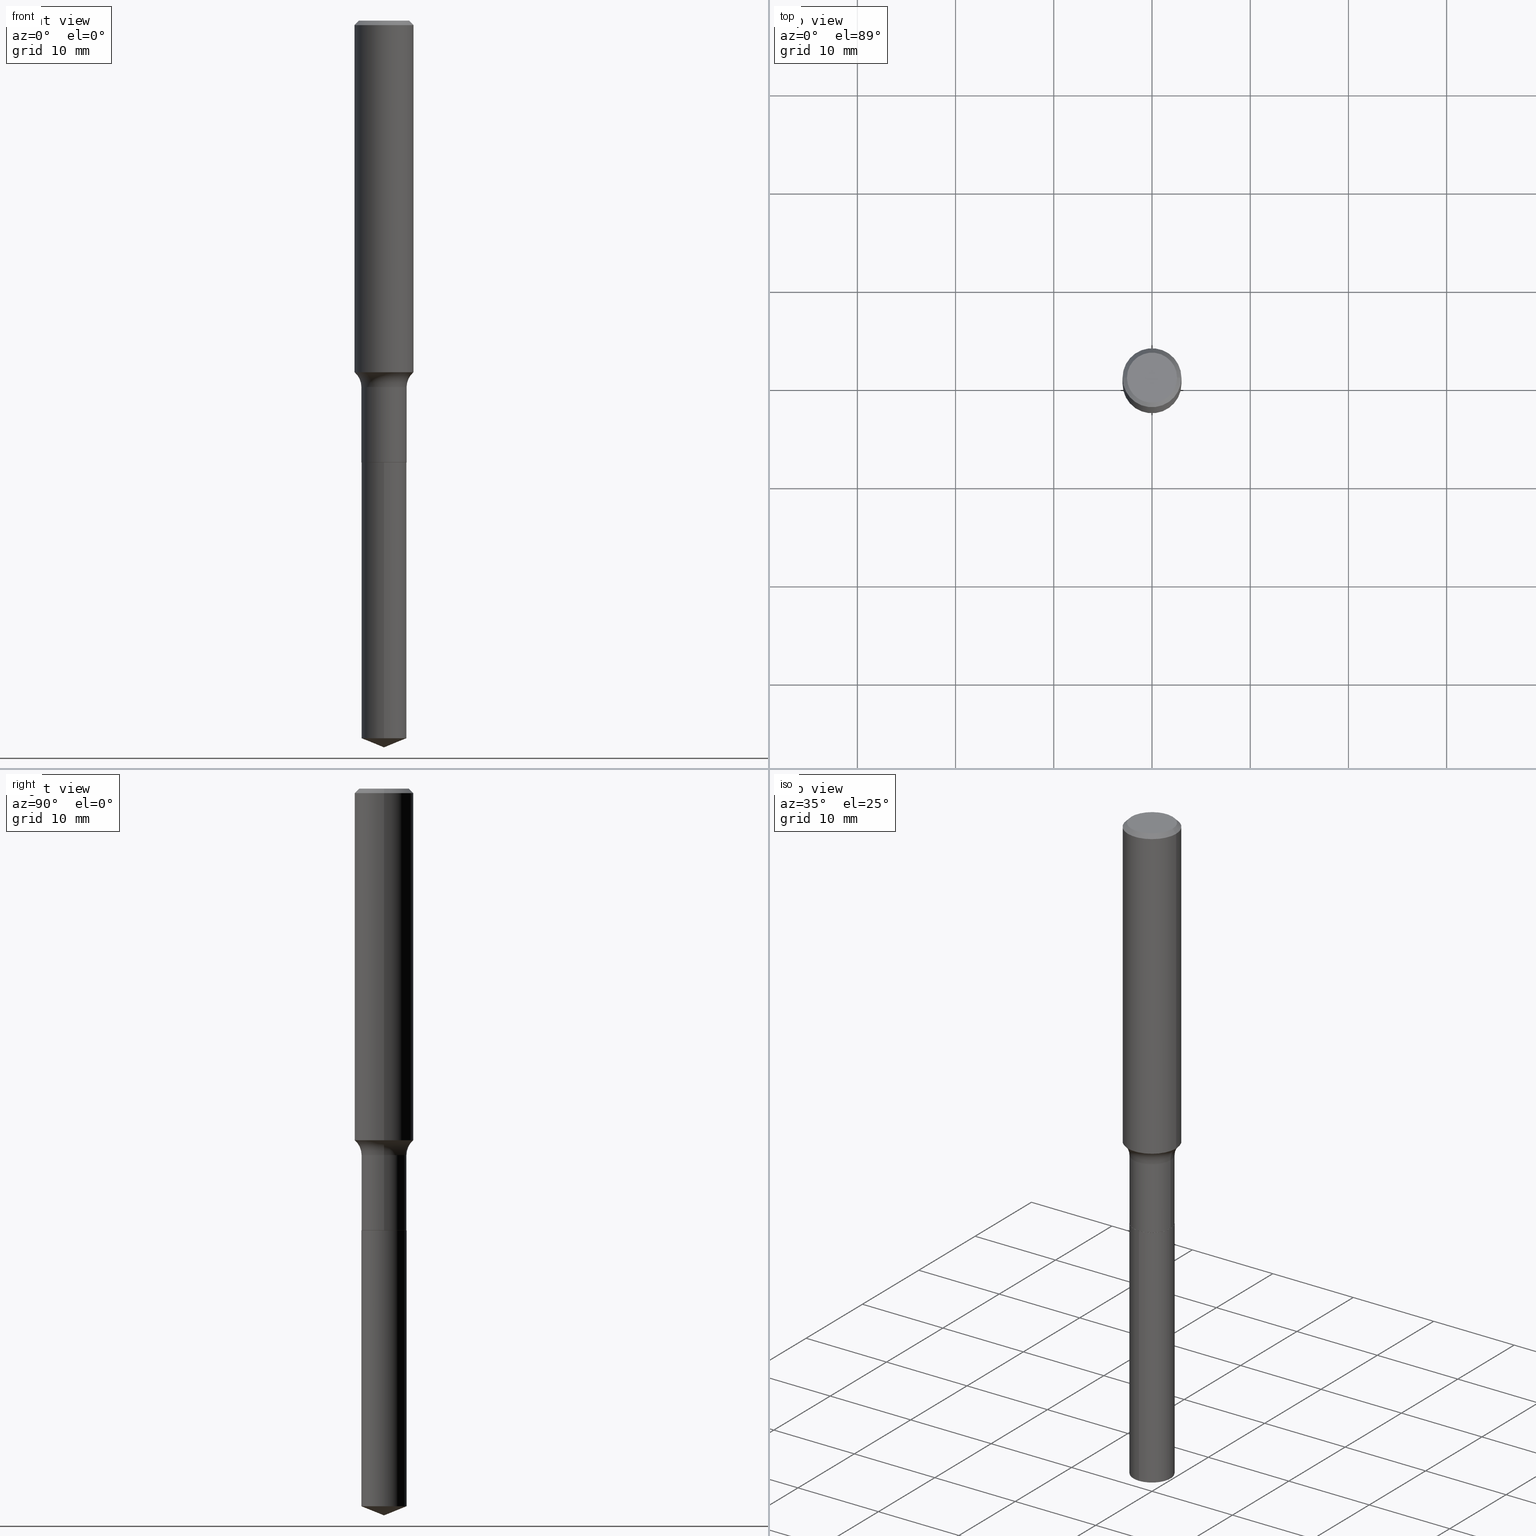
[diagram: canonical four-view strip — front | top / right | iso, engineering-drawing reading convention]
A machine part, canonical four-view strip (front | top / right | iso — engineering-drawing reading convention). The complete STEP part file that produces these views, byte-faithful:
ISO-10303-21;
HEADER;
FILE_DESCRIPTION (( 'STEP AP203' ),
    '1' );
FILE_NAME ('69239.STEP',
    '2024-04-19T17:28:53',
    ( '' ),
    ( '' ),
    'SwSTEP 2.0',
    'SolidWorks 2023',
    '' );
FILE_SCHEMA (( 'CONFIG_CONTROL_DESIGN' ));
ENDSEC;

DATA;
#1 = DIRECTION ( 'NONE',  ( 0.000000000000000000, 0.000000000000000000, 1.000000000000000000 ) ) ;
#2 = CARTESIAN_POINT ( 'NONE',  ( 7.123677460819512964E-29, -1.017064852674887936E-14, -2.912999999999999812 ) ) ;
#3 = ADVANCED_FACE ( 'NONE', ( #396 ), #324, .T. ) ;
#4 = CARTESIAN_POINT ( 'NONE',  ( -0.1003850000000000159, 7.319105043583384717E-16, -2.049109640503831060E-17 ) ) ;
#5 = PERSON_AND_ORGANIZATION_ROLE ( 'design_owner' ) ;
#6 = DIRECTION ( 'NONE',  ( -2.445428197971062335E-29, 3.491539492116975712E-15, 1.000000000000000000 ) ) ;
#7 = DIRECTION ( 'NONE',  ( -2.445428197971062335E-29, 3.491539492116975712E-15, 1.000000000000000000 ) ) ;
#8 = PLANE ( 'NONE',  #474 ) ;
#9 = CYLINDRICAL_SURFACE ( 'NONE', #460, 0.09054999999999999161 ) ;
#10 = DIRECTION ( 'NONE',  ( -2.445428197971062335E-29, 3.491539492116975712E-15, 1.000000000000000000 ) ) ;
#11 = APPROVAL_ROLE ( '' ) ;
#12 = DIRECTION ( 'NONE',  ( -2.445428197971062615E-29, 3.491539492116975712E-15, 1.000000000000000000 ) ) ;
#13 = CLOSED_SHELL ( 'NONE', ( #347, #78, #371, #60, #112 ) ) ;
#14 = CARTESIAN_POINT ( 'NONE',  ( 3.591904582524728769E-29, -5.128287790492811621E-15, -1.468799999999999883 ) ) ;
#15 = APPROVAL_DATE_TIME ( #99, #141 ) ;
#16 = EDGE_CURVE ( 'NONE', #187, #373, #175, .T. ) ;
#17 = ORIENTED_EDGE ( 'NONE', *, *, #94, .F. ) ;
#18 = CALENDAR_DATE ( 2024, 19, 4 ) ;
#19 = APPROVAL ( #137, 'UNSPECIFIED' ) ;
#20 = APPROVAL_PERSON_ORGANIZATION ( #116, #19, #11 ) ;
#21 = CARTESIAN_POINT ( 'NONE',  ( 6.433964472308411631E-16, 0.09054999999998999960, -2.876415425250627766 ) ) ;
#22 = DIRECTION ( 'NONE',  ( -2.445428197971062335E-29, 3.491539492116975712E-15, 1.000000000000000000 ) ) ;
#23 = ORIENTED_EDGE ( 'NONE', *, *, #488, .T. ) ;
#24 = MANIFOLD_SOLID_BREP ( 'Body-Move/Copy2[1]', #13 ) ;
#25 = DIRECTION ( 'NONE',  ( 1.000000000000000000, -6.982962677686266711E-15, 4.875668750515085695E-29 ) ) ;
#26 = ORIENTED_EDGE ( 'NONE', *, *, #234, .T. ) ;
#27 = VERTEX_POINT ( 'NONE', #293 ) ;
#28 = LINE ( 'NONE', #181, #404 ) ;
#29 = EDGE_LOOP ( 'NONE', ( #59, #432 ) ) ;
#30 = AXIS2_PLACEMENT_3D ( 'NONE', #226, #456, #259 ) ;
#31 = ORGANIZATION ( 'UNSPECIFIED', 'UNSPECIFIED', '' ) ;
#32 = DIRECTION ( 'NONE',  ( 1.000000000000000000, -6.982962677686263555E-15, 0.000000000000000000 ) ) ;
#33 = ORIENTED_EDGE ( 'NONE', *, *, #319, .T. ) ;
#34 = EDGE_CURVE ( 'NONE', #480, #27, #214, .T. ) ;
#35 = DIRECTION ( 'NONE',  ( -2.445468806185136597E-29, 3.491481338843145583E-15, 1.000000000000000000 ) ) ;
#36 = ORIENTED_EDGE ( 'NONE', *, *, #129, .T. ) ;
#37 = LINE ( 'NONE', #266, #168 ) ;
#38 = EDGE_CURVE ( 'NONE', #373, #302, #200, .T. ) ;
#39 = CONICAL_SURFACE ( 'NONE', #127, 97.44436430773076552, 1.186823891356153293 ) ;
#40 = DIRECTION ( 'NONE',  ( -2.445428197971062335E-29, 3.491539492116975712E-15, 1.000000000000000000 ) ) ;
#41 = APPROVAL_ROLE ( '' ) ;
#42 = CARTESIAN_POINT ( 'NONE',  ( 0.1180999999999999966, -8.720764054544246253E-16, -0.01771500000000011607 ) ) ;
#43 = PERSON_AND_ORGANIZATION ( #80, #31 ) ;
#44 = DIRECTION ( 'NONE',  ( -2.445428197971062335E-29, 3.491539492116975712E-15, 1.000000000000000000 ) ) ;
#45 = CARTESIAN_POINT ( 'NONE',  ( 7.034139319316397846E-29, -1.004301504610307500E-14, -2.876415425250627322 ) ) ;
#46 = VECTOR ( 'NONE', #378, 39.37007874015748143 ) ;
#47 = DIRECTION ( 'NONE',  ( 1.000000000000000000, -6.982962677686265922E-15, 4.876176775795935793E-29 ) ) ;
#48 = FACE_OUTER_BOUND ( 'NONE', #147, .T. ) ;
#49 = CARTESIAN_POINT ( 'NONE',  ( 7.123532340689705005E-29, -1.017085454053675039E-14, -2.912999999999999812 ) ) ;
#50 = DATE_AND_TIME ( #18, #206 ) ;
#51 = CYLINDRICAL_SURFACE ( 'NONE', #83, 0.1181000000000000799 ) ;
#52 = FACE_OUTER_BOUND ( 'NONE', #410, .T. ) ;
#53 = COORDINATED_UNIVERSAL_TIME_OFFSET ( 5, 0, .BEHIND. ) ;
#54 = VECTOR ( 'NONE', #489, 39.37007874015748143 ) ;
#55 = CIRCLE ( 'NONE', #333, 0.09055000000000000548 ) ;
#56 = SECURITY_CLASSIFICATION_LEVEL ( 'unclassified' ) ;
#57 = DIRECTION ( 'NONE',  ( -6.982962677686266711E-15, -1.000000000000000000, 3.491481338843145583E-15 ) ) ;
#58 = PERSON_AND_ORGANIZATION ( #80, #31 ) ;
#59 = ORIENTED_EDGE ( 'NONE', *, *, #362, .F. ) ;
#60 = ADVANCED_FACE ( 'NONE', ( #470 ), #212, .T. ) ;
#61 = CARTESIAN_POINT ( 'NONE',  ( 0.1181000000000001909, -5.745275164048953464E-15, -1.409312207134572281 ) ) ;
#62 = DIRECTION ( 'NONE',  ( -2.445468806185136597E-29, 3.491481338843145583E-15, 1.000000000000000000 ) ) ;
#63 = EDGE_LOOP ( 'NONE', ( #289, #327, #96, #481 ) ) ;
#64 = VECTOR ( 'NONE', #268, 39.37007874015748143 ) ;
#65 = ORIENTED_EDGE ( 'NONE', *, *, #34, .T. ) ;
#66 = ORIENTED_EDGE ( 'NONE', *, *, #252, .F. ) ;
#67 = PRODUCT_DEFINITION_SHAPE ( 'NONE', 'NONE',  #172 ) ;
#68 = DIRECTION ( 'NONE',  ( 1.000000000000000000, -6.982962677686266711E-15, 0.000000000000000000 ) ) ;
#69 = VERTEX_POINT ( 'NONE', #392 ) ;
#70 = CARTESIAN_POINT ( 'NONE',  ( 0.000000000000000000, 0.000000000000000000, 0.000000000000000000 ) ) ;
#71 = VERTEX_POINT ( 'NONE', #49 ) ;
#72 = AXIS2_PLACEMENT_3D ( 'NONE', #491, #40, #315 ) ;
#73 = LOCAL_TIME ( 13, 28, 53.00000000000000000, #360 ) ;
#74 = DIRECTION ( 'NONE',  ( -1.000000000000000000, 7.105427357601001859E-15, 0.000000000000000000 ) ) ;
#75 = ORIENTED_EDGE ( 'NONE', *, *, #233, .T. ) ;
#76 = CYLINDRICAL_SURFACE ( 'NONE', #30, 0.09054999999999999161 ) ;
#77 = ADVANCED_FACE ( 'NONE', ( #316 ), #8, .F. ) ;
#78 = ADVANCED_FACE ( 'NONE', ( #350 ), #39, .T. ) ;
#79 = CARTESIAN_POINT ( 'NONE',  ( 4.330436161992639608E-29, -6.182715154823442375E-15, -1.770799999999999930 ) ) ;
#80 = PERSON ( 'UNSPECIFIED', 'UNSPECIFIED', 'UNSPECIFIED', ('UNSPECIFIED'), ('UNSPECIFIED'), ('UNSPECIFIED') ) ;
#81 = AXIS2_PLACEMENT_3D ( 'NONE', #177, #239, #139 ) ;
#82 = CARTESIAN_POINT ( 'NONE',  ( 4.331658896395732410E-29, -6.184460895492863090E-15, -1.771299999999999653 ) ) ;
#83 = AXIS2_PLACEMENT_3D ( 'NONE', #123, #434, #355 ) ;
#84 = DATE_AND_TIME ( #345, #169 ) ;
#85 = LINE ( 'NONE', #386, #111 ) ;
#86 = APPROVAL_DATE_TIME ( #84, #114 ) ;
#87 = DIRECTION ( 'NONE',  ( -6.982962677686266711E-15, -1.000000000000000000, 6.033899489043098888E-15 ) ) ;
#88 = ADVANCED_FACE ( 'NONE', ( #52 ), #151, .T. ) ;
#89 = APPLICATION_PROTOCOL_DEFINITION ( 'international standard', 'config_control_design', 1994, #426 ) ;
#90 = DIRECTION ( 'NONE',  ( -2.445468806185136597E-29, 3.491481338843145583E-15, 1.000000000000000000 ) ) ;
#91 = APPROVAL_PERSON_ORGANIZATION ( #58, #141, #290 ) ;
#92 = ORIENTED_EDGE ( 'NONE', *, *, #340, .T. ) ;
#93 = VERTEX_POINT ( 'NONE', #356 ) ;
#94 = EDGE_CURVE ( 'NONE', #435, #69, #431, .T. ) ;
#95 = LENGTH_MEASURE_WITH_UNIT ( LENGTH_MEASURE( 0.02539999999999999897 ), #439 );
#96 = ORIENTED_EDGE ( 'NONE', *, *, #94, .T. ) ;
#97 = CLOSED_SHELL ( 'NONE', ( #429, #416, #288, #438, #307, #401, #198, #408, #88, #305, #77, #3 ) ) ;
#98 =( CONVERSION_BASED_UNIT ( 'INCH', #95 ) LENGTH_UNIT ( ) NAMED_UNIT ( #322 ) );
#99 = DATE_AND_TIME ( #132, #73 ) ;
#100 =( NAMED_UNIT ( * ) SI_UNIT ( $, .STERADIAN. ) SOLID_ANGLE_UNIT ( ) );
#101 = EDGE_LOOP ( 'NONE', ( #263, #353, #476, #251 ) ) ;
#102 = CARTESIAN_POINT ( 'NONE',  ( 4.331658896395732410E-29, -6.184460895492863090E-15, -1.771299999999999653 ) ) ;
#103 = ORIENTED_EDGE ( 'NONE', *, *, #430, .T. ) ;
#104 = CONICAL_SURFACE ( 'NONE', #247, 0.1180999999999999966, 0.7853981633974452814 ) ;
#105 = CARTESIAN_POINT ( 'NONE',  ( 0.1180999999999999966, -8.865394841523548556E-16, -0.01771500000000011607 ) ) ;
#106 = ORIENTED_EDGE ( 'NONE', *, *, #451, .T. ) ;
#107 = DIRECTION ( 'NONE',  ( -2.445468806185136597E-29, 3.491481338843145583E-15, 1.000000000000000000 ) ) ;
#108 = ORIENTED_EDGE ( 'NONE', *, *, #314, .T. ) ;
#109 = DIRECTION ( 'NONE',  ( -0.7071067811865453523, 2.468850131082234184E-15, -0.7071067811865496822 ) ) ;
#110 = ORIENTED_EDGE ( 'NONE', *, *, #328, .T. ) ;
#111 = VECTOR ( 'NONE', #237, 39.37007874015748143 ) ;
#112 = ADVANCED_FACE ( 'NONE', ( #320 ), #369, .F. ) ;
#113 = CARTESIAN_POINT ( 'NONE',  ( 2.505516853152066359E-46, -3.577214035530481610E-32, -1.024554820251665005E-17 ) ) ;
#114 = APPROVAL ( #463, 'UNSPECIFIED' ) ;
#115 = CARTESIAN_POINT ( 'NONE',  ( -0.09005000000000000504, -5.541967934766781931E-15, -1.771299999999999653 ) ) ;
#116 = PERSON_AND_ORGANIZATION ( #80, #31 ) ;
#117 = CARTESIAN_POINT ( 'NONE',  ( 4.332147990156998495E-31, -6.185159191760672860E-17, -0.01771500000000011607 ) ) ;
#118 = CIRCLE ( 'NONE', #363, 0.1180999999999999966 ) ;
#119 = CARTESIAN_POINT ( 'NONE',  ( 6.433964472308412617E-16, 0.09054999999999382987, -1.771300000000000097 ) ) ;
#120 = AXIS2_PLACEMENT_3D ( 'NONE', #385, #90, #351 ) ;
#121 = EDGE_CURVE ( 'NONE', #27, #480, #383, .T. ) ;
#122 = DIRECTION ( 'NONE',  ( -6.982962677686266711E-15, -1.000000000000000000, 3.016949744521549444E-15 ) ) ;
#123 = CARTESIAN_POINT ( 'NONE',  ( 0.000000000000000000, 0.000000000000000000, 0.000000000000000000 ) ) ;
#124 = CARTESIAN_POINT ( 'NONE',  ( 4.332147990156998495E-31, -6.185159191760672860E-17, -0.01771500000000011607 ) ) ;
#125 = UNCERTAINTY_MEASURE_WITH_UNIT (LENGTH_MEASURE( 1.000000000000000082E-05 ), #98, 'distance_accuracy_value', 'NONE');
#126 = CARTESIAN_POINT ( 'NONE',  ( -6.323072704644481808E-16, -0.09055000000000619498, -1.771299999999999430 ) ) ;
#127 = AXIS2_PLACEMENT_3D ( 'NONE', #162, #22, #466 ) ;
#128 = VECTOR ( 'NONE', #133, 39.37007874015748143 ) ;
#129 = EDGE_CURVE ( 'NONE', #442, #332, #37, .T. ) ;
#130 = DIRECTION ( 'NONE',  ( 0.7071067811866199593, -2.468850131083015945E-15, 0.7071067811864750752 ) ) ;
#131 = DIRECTION ( 'NONE',  ( 2.445428197971062055E-29, -3.491539492116975712E-15, -1.000000000000000000 ) ) ;
#132 = CALENDAR_DATE ( 2024, 19, 4 ) ;
#133 = DIRECTION ( 'NONE',  ( -2.445468806185136877E-29, 3.491481338843145188E-15, 1.000000000000000000 ) ) ;
#134 = CARTESIAN_POINT ( 'NONE',  ( 5.011033706304132718E-46, -7.154428071060963220E-32, -2.049109640503330010E-17 ) ) ;
#135 = VECTOR ( 'NONE', #12, 39.37007874015748143 ) ;
#136 = VERTEX_POINT ( 'NONE', #105 ) ;
#137 = APPROVAL_STATUS ( 'not_yet_approved' ) ;
#138 = DIRECTION ( 'NONE',  ( -2.445468806185136597E-29, 3.491481338843145583E-15, 1.000000000000000000 ) ) ;
#139 = DIRECTION ( 'NONE',  ( 1.000000000000000000, -6.982962677686271444E-15, 0.000000000000000000 ) ) ;
#140 = EDGE_LOOP ( 'NONE', ( #370, #108, #329, #174 ) ) ;
#141 = APPROVAL ( #357, 'UNSPECIFIED' ) ;
#142 = AXIS2_PLACEMENT_3D ( 'NONE', #124, #326, #202 ) ;
#143 = PRODUCT_DEFINITION_FORMATION_WITH_SPECIFIED_SOURCE ( 'ANY', '', #211, .NOT_KNOWN. ) ;
#144 = FACE_OUTER_BOUND ( 'NONE', #101, .T. ) ;
#145 = ORIENTED_EDGE ( 'NONE', *, *, #16, .T. ) ;
#146 = DIRECTION ( 'NONE',  ( 1.000000000000000000, -6.982962677686266711E-15, 4.876176775795936353E-29 ) ) ;
#147 = EDGE_LOOP ( 'NONE', ( #92, #255, #407, #325 ) ) ;
#148 = EDGE_CURVE ( 'NONE', #93, #403, #459, .T. ) ;
#149 = LINE ( 'NONE', #335, #46 ) ;
#150 = ORIENTED_EDGE ( 'NONE', *, *, #121, .T. ) ;
#151 = CONICAL_SURFACE ( 'NONE', #142, 0.1180999999999999966, 0.7853981633974452814 ) ;
#152 = CIRCLE ( 'NONE', #228, 0.09055000000000000548 ) ;
#153 = DIRECTION ( 'NONE',  ( 1.000000000000000000, -6.982962677686266711E-15, 0.000000000000000000 ) ) ;
#154 = PERSON_AND_ORGANIZATION ( #80, #31 ) ;
#155 = LINE ( 'NONE', #2, #54 ) ;
#156 = DIRECTION ( 'NONE',  ( -2.445468806185136597E-29, 3.491481338843145583E-15, 1.000000000000000000 ) ) ;
#157 = AXIS2_PLACEMENT_3D ( 'NONE', #381, #382, #343 ) ;
#158 = CARTESIAN_POINT ( 'NONE',  ( 0.000000000000000000, 0.000000000000000000, 0.000000000000000000 ) ) ;
#159 = AXIS2_PLACEMENT_3D ( 'NONE', #465, #461, #193 ) ;
#160 = PERSON_AND_ORGANIZATION_ROLE ( 'creator' ) ;
#161 = DIRECTION ( 'NONE',  ( -2.445468806185136877E-29, 3.491481338843145188E-15, 1.000000000000000000 ) ) ;
#162 = CARTESIAN_POINT ( 'NONE',  ( -8.915309643750284617E-28, 1.272914331953719616E-13, 36.45707874015747763 ) ) ;
#163 = DIRECTION ( 'NONE',  ( 1.000000000000000000, 0.000000000000000000, 0.000000000000000000 ) ) ;
#164 = EDGE_CURVE ( 'NONE', #136, #332, #118, .T. ) ;
#165 = DIRECTION ( 'NONE',  ( 0.7071067811865453523, -7.319954787623248157E-15, -0.7071067811865496822 ) ) ;
#166 = DIRECTION ( 'NONE',  ( 1.000000000000000000, -6.982962677686271444E-15, 0.000000000000000000 ) ) ;
#167 = DIRECTION ( 'NONE',  ( -2.445468806185136597E-29, 3.491481338843145583E-15, 1.000000000000000000 ) ) ;
#168 = VECTOR ( 'NONE', #109, 39.37007874015748143 ) ;
#169 = LOCAL_TIME ( 13, 28, 53.00000000000000000, #240 ) ;
#170 = DIRECTION ( 'NONE',  ( 1.000000000000000000, -6.982962677686268288E-15, 0.000000000000000000 ) ) ;
#171 = DATE_AND_TIME ( #243, #390 ) ;
#172 = PRODUCT_DEFINITION ( 'UNKNOWN', '', #143, #283 ) ;
#173 = PERSON_AND_ORGANIZATION_ROLE ( 'creator' ) ;
#174 = ORIENTED_EDGE ( 'NONE', *, *, #38, .F. ) ;
#175 = CIRCLE ( 'NONE', #415, 0.09005000000000000504 ) ;
#176 = AXIS2_PLACEMENT_3D ( 'NONE', #82, #7, #122 ) ;
#177 = CARTESIAN_POINT ( 'NONE',  ( 4.331658896395732410E-29, -6.184460895492863090E-15, -1.771299999999999653 ) ) ;
#178 = ORIENTED_EDGE ( 'NONE', *, *, #164, .F. ) ;
#179 = EDGE_CURVE ( 'NONE', #302, #294, #152, .T. ) ;
#180 = CARTESIAN_POINT ( 'NONE',  ( 4.331658896395732410E-29, -6.184460895492863090E-15, -1.771299999999999653 ) ) ;
#181 = CARTESIAN_POINT ( 'NONE',  ( 7.123532340689703884E-29, -1.017085454053675039E-14, -2.912999999999999812 ) ) ;
#182 = EDGE_LOOP ( 'NONE', ( #487, #197, #106, #361 ) ) ;
#183 = VECTOR ( 'NONE', #161, 39.37007874015748143 ) ;
#184 = CARTESIAN_POINT ( 'NONE',  ( 4.331658896395732410E-29, -6.184460895492863090E-15, -1.771299999999999653 ) ) ;
#185 = ORIENTED_EDGE ( 'NONE', *, *, #380, .F. ) ;
#186 = DIRECTION ( 'NONE',  ( -2.445428197971062335E-29, 3.491539492116975712E-15, 1.000000000000000000 ) ) ;
#187 = VERTEX_POINT ( 'NONE', #115 ) ;
#188 = DIRECTION ( 'NONE',  ( -2.445468806185136597E-29, 3.491481338843145583E-15, 1.000000000000000000 ) ) ;
#189 = AXIS2_PLACEMENT_3D ( 'NONE', #113, #417, #484 ) ;
#190 = APPROVAL_PERSON_ORGANIZATION ( #424, #114, #41 ) ;
#191 = CARTESIAN_POINT ( 'NONE',  ( -0.09055000000000000548, -5.012105025427356931E-15, -1.770799999999999930 ) ) ;
#192 = DIRECTION ( 'NONE',  ( 1.000000000000000000, -6.982962677686265133E-15, 4.883557194083112340E-29 ) ) ;
#193 = DIRECTION ( 'NONE',  ( 1.000000000000000000, -6.982962677686271444E-15, 0.000000000000000000 ) ) ;
#194 = CIRCLE ( 'NONE', #264, 0.07800000000000002764 ) ;
#195 = CARTESIAN_POINT ( 'NONE',  ( 0.1003850000000000159, -7.803837484803599345E-16, -2.049109640502812012E-17 ) ) ;
#196 = AXIS2_PLACEMENT_3D ( 'NONE', #45, #44, #349 ) ;
#197 = ORIENTED_EDGE ( 'NONE', *, *, #34, .F. ) ;
#198 = ADVANCED_FACE ( 'NONE', ( #218 ), #277, .F. ) ;
#199 = LINE ( 'NONE', #428, #64 ) ;
#200 = LINE ( 'NONE', #479, #454 ) ;
#201 = CARTESIAN_POINT ( 'NONE',  ( 7.034139319316397846E-29, -1.004301504610307500E-14, -2.876415425250627322 ) ) ;
#202 = DIRECTION ( 'NONE',  ( -1.000000000000000000, 6.982962677686266711E-15, 0.000000000000000000 ) ) ;
#203 = PERSON_AND_ORGANIZATION_ROLE ( 'design_supplier' ) ;
#204 = DIRECTION ( 'NONE',  ( -2.445468806185136597E-29, 3.491481338843145583E-15, 1.000000000000000000 ) ) ;
#205 = CIRCLE ( 'NONE', #222, 0.09055000000000000548 ) ;
#206 = LOCAL_TIME ( 13, 28, 53.00000000000000000, #53 ) ;
#207 = PERSON_AND_ORGANIZATION_ROLE ( 'classification_officer' ) ;
#208 = EDGE_CURVE ( 'NONE', #27, #435, #194, .T. ) ;
#209 = SHAPE_DEFINITION_REPRESENTATION ( #67, #462 ) ;
#210 = ORIENTED_EDGE ( 'NONE', *, *, #430, .F. ) ;
#211 = PRODUCT ( '69239', '69239', '', ( #384 ) ) ;
#212 = CYLINDRICAL_SURFACE ( 'NONE', #303, 0.09055000000000000548 ) ;
#213 = ORIENTED_EDGE ( 'NONE', *, *, #334, .T. ) ;
#214 = CIRCLE ( 'NONE', #468, 0.1181000000000001632 ) ;
#215 = AXIS2_PLACEMENT_3D ( 'NONE', #249, #57, #250 ) ;
#216 = ORIENTED_EDGE ( 'NONE', *, *, #464, .F. ) ;
#217 = ORIENTED_EDGE ( 'NONE', *, *, #323, .F. ) ;
#218 = FACE_OUTER_BOUND ( 'NONE', #182, .T. ) ;
#219 = ORIENTED_EDGE ( 'NONE', *, *, #252, .T. ) ;
#220 = LINE ( 'NONE', #374, #310 ) ;
#221 = ORIENTED_EDGE ( 'NONE', *, *, #380, .T. ) ;
#222 = AXIS2_PLACEMENT_3D ( 'NONE', #79, #188, #341 ) ;
#223 = DIRECTION ( 'NONE',  ( -2.445468806185136597E-29, 3.491481338843145583E-15, 1.000000000000000000 ) ) ;
#224 = ORIENTED_EDGE ( 'NONE', *, *, #319, .F. ) ;
#225 = CC_DESIGN_PERSON_AND_ORGANIZATION_ASSIGNMENT ( #399, #203, ( #143 ) ) ;
#226 = CARTESIAN_POINT ( 'NONE',  ( 0.000000000000000000, 0.000000000000000000, 0.000000000000000000 ) ) ;
#227 = CARTESIAN_POINT ( 'NONE',  ( 0.09055000000000000548, -6.815022425287933844E-15, -1.770799999999999930 ) ) ;
#228 = AXIS2_PLACEMENT_3D ( 'NONE', #413, #223, #153 ) ;
#229 = CC_DESIGN_PERSON_AND_ORGANIZATION_ASSIGNMENT ( #321, #207, ( #304 ) ) ;
#230 = FACE_OUTER_BOUND ( 'NONE', #140, .T. ) ;
#231 = FACE_OUTER_BOUND ( 'NONE', #298, .T. ) ;
#232 = LINE ( 'NONE', #457, #183 ) ;
#233 = EDGE_CURVE ( 'NONE', #71, #490, #155, .T. ) ;
#234 = EDGE_CURVE ( 'NONE', #302, #69, #149, .T. ) ;
#235 = ORIENTED_EDGE ( 'NONE', *, *, #233, .F. ) ;
#236 = DATE_AND_TIME ( #313, #492 ) ;
#237 = DIRECTION ( 'NONE',  ( -2.445428197971062615E-29, 3.491539492116975712E-15, 1.000000000000000000 ) ) ;
#238 = AXIS2_PLACEMENT_3D ( 'NONE', #134, #284, #25 ) ;
#239 = DIRECTION ( 'NONE',  ( -2.445468806185136597E-29, 3.491481338843145583E-15, 1.000000000000000000 ) ) ;
#240 = COORDINATED_UNIVERSAL_TIME_OFFSET ( 5, 0, .BEHIND. ) ;
#241 = CARTESIAN_POINT ( 'NONE',  ( -6.323072704644212610E-16, -0.09055000000001005300, -2.876415425250626878 ) ) ;
#242 = DIRECTION ( 'NONE',  ( -2.445468806185136597E-29, 3.491481338843145583E-15, 1.000000000000000000 ) ) ;
#243 = CALENDAR_DATE ( 2024, 19, 4 ) ;
#244 = ORIENTED_EDGE ( 'NONE', *, *, #419, .T. ) ;
#245 = CC_DESIGN_PERSON_AND_ORGANIZATION_ASSIGNMENT ( #43, #160, ( #172 ) ) ;
#246 = AXIS2_PLACEMENT_3D ( 'NONE', #70, #486, #146 ) ;
#247 = AXIS2_PLACEMENT_3D ( 'NONE', #117, #344, #273 ) ;
#248 = APPLICATION_CONTEXT ( 'configuration controlled 3d designs of mechanical parts and assemblies' ) ;
#249 = CARTESIAN_POINT ( 'NONE',  ( 0.1685499999999999776, -6.305266149816831137E-15, -1.468799999999999883 ) ) ;
#250 = DIRECTION ( 'NONE',  ( 1.000000000000000000, -6.982962677686268288E-15, 0.000000000000000000 ) ) ;
#251 = ORIENTED_EDGE ( 'NONE', *, *, #234, .F. ) ;
#252 = EDGE_CURVE ( 'NONE', #336, #442, #295, .T. ) ;
#253 = APPLICATION_PROTOCOL_DEFINITION ( 'international standard', 'config_control_design', 1994, #248 ) ;
#254 = EDGE_LOOP ( 'NONE', ( #65, #367, #178, #412 ) ) ;
#255 = ORIENTED_EDGE ( 'NONE', *, *, #339, .T. ) ;
#256 = AXIS2_PLACEMENT_3D ( 'NONE', #372, #107, #297 ) ;
#257 = DIRECTION ( 'NONE',  ( -6.982962677686266711E-15, -1.000000000000000000, 3.016949744521549444E-15 ) ) ;
#258 = ORIENTED_EDGE ( 'NONE', *, *, #340, .F. ) ;
#259 = DIRECTION ( 'NONE',  ( 1.000000000000000000, -6.982962677686266711E-15, 4.876176775795935793E-29 ) ) ;
#260 = ORIENTED_EDGE ( 'NONE', *, *, #339, .F. ) ;
#261 = CC_DESIGN_DATE_AND_TIME_ASSIGNMENT ( #236, #276, ( #172 ) ) ;
#262 = DIRECTION ( 'NONE',  ( -2.445468806185136597E-29, 3.491481338843145583E-15, 1.000000000000000000 ) ) ;
#263 = ORIENTED_EDGE ( 'NONE', *, *, #179, .T. ) ;
#264 = AXIS2_PLACEMENT_3D ( 'NONE', #447, #418, #74 ) ;
#265 = CIRCLE ( 'NONE', #159, 0.09005000000000000504 ) ;
#266 = CARTESIAN_POINT ( 'NONE',  ( -0.1180999999999999966, 7.628363003171412752E-16, -0.01771500000000011607 ) ) ;
#267 = DIRECTION ( 'NONE',  ( -0.7071067811866199593, 7.493145998870616062E-15, 0.7071067811864750752 ) ) ;
#268 = DIRECTION ( 'NONE',  ( -2.445468806185136877E-29, 3.491481338843145188E-15, 1.000000000000000000 ) ) ;
#269 = AXIS2_PLACEMENT_3D ( 'NONE', #180, #131, #281 ) ;
#270 = AXIS2_PLACEMENT_3D ( 'NONE', #394, #167, #192 ) ;
#271 = LINE ( 'NONE', #126, #135 ) ;
#272 = FACE_OUTER_BOUND ( 'NONE', #379, .T. ) ;
#273 = DIRECTION ( 'NONE',  ( -1.000000000000000000, 6.982962677686266711E-15, 0.000000000000000000 ) ) ;
#274 = EDGE_CURVE ( 'NONE', #71, #440, #28, .T. ) ;
#275 = ORIENTED_EDGE ( 'NONE', *, *, #274, .T. ) ;
#276 = DATE_TIME_ROLE ( 'creation_date' ) ;
#277 = TOROIDAL_SURFACE ( 'NONE', #256, 0.1685499999999999776, 0.07800000000000001377 ) ;
#278 = CC_DESIGN_APPROVAL ( #19, ( #143 ) ) ;
#279 = CARTESIAN_POINT ( 'NONE',  ( -8.915309643750284617E-28, 1.272914331953719616E-13, 36.45707874015747763 ) ) ;
#280 = DIRECTION ( 'NONE',  ( -6.982962677686266711E-15, -1.000000000000000000, 3.016949744521549444E-15 ) ) ;
#281 = DIRECTION ( 'NONE',  ( 6.982962677686265922E-15, 1.000000000000000000, -3.491539492116975712E-15 ) ) ;
#282 = APPROVAL_DATE_TIME ( #50, #19 ) ;
#283 = DESIGN_CONTEXT ( 'detailed design', #426, 'design' ) ;
#284 = DIRECTION ( 'NONE',  ( -2.445468806185136597E-29, 3.491481338843145583E-15, 1.000000000000000000 ) ) ;
#285 = CIRCLE ( 'NONE', #72, 0.09055000000000000548 ) ;
#286 = CC_DESIGN_APPROVAL ( #114, ( #172 ) ) ;
#287 =( NAMED_UNIT ( * ) PLANE_ANGLE_UNIT ( ) SI_UNIT ( $, .RADIAN. ) );
#288 = ADVANCED_FACE ( 'NONE', ( #449 ), #331, .T. ) ;
#289 = ORIENTED_EDGE ( 'NONE', *, *, #121, .F. ) ;
#290 = APPROVAL_ROLE ( '' ) ;
#291 = DIRECTION ( 'NONE',  ( 1.000000000000000000, -6.982962677686263555E-15, 0.000000000000000000 ) ) ;
#292 = ORIENTED_EDGE ( 'NONE', *, *, #328, .F. ) ;
#293 = CARTESIAN_POINT ( 'NONE',  ( -0.1181000000000001909, -4.081436300881524638E-15, -1.409312207134572281 ) ) ;
#294 = VERTEX_POINT ( 'NONE', #191 ) ;
#295 = CIRCLE ( 'NONE', #342, 0.1003850000000000159 ) ;
#296 = TOROIDAL_SURFACE ( 'NONE', #270, 0.1685499999999999776, 0.07800000000000001377 ) ;
#297 = DIRECTION ( 'NONE',  ( 1.000000000000000000, -6.982962677686265133E-15, 4.883557194083112340E-29 ) ) ;
#298 = EDGE_LOOP ( 'NONE', ( #235, #275, #185 ) ) ;
#299 = FACE_OUTER_BOUND ( 'NONE', #446, .T. ) ;
#300 = EDGE_LOOP ( 'NONE', ( #330, #150, #244, #224 ) ) ;
#301 = DIRECTION ( 'NONE',  ( 1.000000000000000000, -6.982962677686266711E-15, 4.875668750515085695E-29 ) ) ;
#302 = VERTEX_POINT ( 'NONE', #227 ) ;
#303 = AXIS2_PLACEMENT_3D ( 'NONE', #102, #10, #280 ) ;
#304 = SECURITY_CLASSIFICATION ( '', '', #56 ) ;
#305 = ADVANCED_FACE ( 'NONE', ( #299 ), #452, .F. ) ;
#306 = DIRECTION ( 'NONE',  ( -6.474490251793199928E-15, -0.9271838545667895337, 0.3746065934159067412 ) ) ;
#307 = ADVANCED_FACE ( 'NONE', ( #144 ), #76, .T. ) ;
#308 = COORDINATED_UNIVERSAL_TIME_OFFSET ( 5, 0, .BEHIND. ) ;
#309 = DIRECTION ( 'NONE',  ( -6.982962677686265922E-15, -1.000000000000000000, 3.498761904101743544E-15 ) ) ;
#310 = VECTOR ( 'NONE', #267, 39.37007874015748143 ) ;
#311 = CONICAL_SURFACE ( 'NONE', #120, 0.09005000000000000504, 0.7853981633975507526 ) ;
#312 = CARTESIAN_POINT ( 'NONE',  ( -0.1180999999999999966, -1.652068460933225925E-15, -0.01771500000000011607 ) ) ;
#313 = CALENDAR_DATE ( 2024, 19, 4 ) ;
#314 = EDGE_CURVE ( 'NONE', #187, #294, #220, .T. ) ;
#315 = DIRECTION ( 'NONE',  ( -6.982962677686266711E-15, -1.000000000000000000, 3.016949744521549444E-15 ) ) ;
#316 = FACE_OUTER_BOUND ( 'NONE', #29, .T. ) ;
#317 = CARTESIAN_POINT ( 'NONE',  ( -0.09054999999999997773, -5.012105025427356931E-15, -1.468799999999999883 ) ) ;
#318 = CARTESIAN_POINT ( 'NONE',  ( 3.446429040723522126E-29, -4.920587271814204412E-15, -1.409312207134572281 ) ) ;
#319 = EDGE_CURVE ( 'NONE', #332, #136, #376, .T. ) ;
#320 = FACE_OUTER_BOUND ( 'NONE', #445, .T. ) ;
#321 = PERSON_AND_ORGANIZATION ( #80, #31 ) ;
#322 = DIMENSIONAL_EXPONENTS ( 1.000000000000000000, 0.000000000000000000, 0.000000000000000000, 0.000000000000000000, 0.000000000000000000, 0.000000000000000000, 0.000000000000000000 ) ;
#323 = EDGE_CURVE ( 'NONE', #294, #302, #205, .T. ) ;
#324 = CONICAL_SURFACE ( 'NONE', #81, 0.09005000000000000504, 0.7853981633975507526 ) ;
#325 = ORIENTED_EDGE ( 'NONE', *, *, #334, .F. ) ;
#326 = DIRECTION ( 'NONE',  ( 2.445468806185136597E-29, -3.491481338843145583E-15, -1.000000000000000000 ) ) ;
#327 = ORIENTED_EDGE ( 'NONE', *, *, #208, .T. ) ;
#328 = EDGE_CURVE ( 'NONE', #403, #93, #285, .T. ) ;
#329 = ORIENTED_EDGE ( 'NONE', *, *, #179, .F. ) ;
#330 = ORIENTED_EDGE ( 'NONE', *, *, #387, .F. ) ;
#331 = CYLINDRICAL_SURFACE ( 'NONE', #246, 0.1181000000000000799 ) ;
#332 = VERTEX_POINT ( 'NONE', #312 ) ;
#333 = AXIS2_PLACEMENT_3D ( 'NONE', #201, #6, #87 ) ;
#334 = EDGE_CURVE ( 'NONE', #440, #93, #271, .T. ) ;
#335 = CARTESIAN_POINT ( 'NONE',  ( 0.09054999999999999161, -6.323072704644913710E-16, 4.415378070483219406E-30 ) ) ;
#336 = VERTEX_POINT ( 'NONE', #195 ) ;
#337 = DIRECTION ( 'NONE',  ( -2.445468806185136597E-29, 3.491481338843145583E-15, 1.000000000000000000 ) ) ;
#338 = ORIENTED_EDGE ( 'NONE', *, *, #323, .T. ) ;
#339 = EDGE_CURVE ( 'NONE', #490, #403, #85, .T. ) ;
#340 = EDGE_CURVE ( 'NONE', #440, #490, #444, .T. ) ;
#341 = DIRECTION ( 'NONE',  ( 1.000000000000000000, -6.982962677686266711E-15, 0.000000000000000000 ) ) ;
#342 = AXIS2_PLACEMENT_3D ( 'NONE', #409, #35, #301 ) ;
#343 = DIRECTION ( 'NONE',  ( 1.000000000000000000, -6.982962677686266711E-15, 0.000000000000000000 ) ) ;
#344 = DIRECTION ( 'NONE',  ( 2.445468806185136597E-29, -3.491481338843145583E-15, -1.000000000000000000 ) ) ;
#345 = CALENDAR_DATE ( 2024, 19, 4 ) ;
#346 = CARTESIAN_POINT ( 'NONE',  ( 0.09005000000000000504, -6.813276684618512341E-15, -1.771299999999999653 ) ) ;
#347 = ADVANCED_FACE ( 'NONE', ( #48 ), #425, .T. ) ;
#348 = AXIS2_PLACEMENT_3D ( 'NONE', #279, #421, #309 ) ;
#349 = DIRECTION ( 'NONE',  ( -6.982962677686266711E-15, -1.000000000000000000, 6.033899489043098888E-15 ) ) ;
#350 = FACE_OUTER_BOUND ( 'NONE', #469, .T. ) ;
#351 = DIRECTION ( 'NONE',  ( 1.000000000000000000, -6.982962677686271444E-15, 0.000000000000000000 ) ) ;
#352 = MANIFOLD_SOLID_BREP ( 'Body-Move/Copy2[2]', #97 ) ;
#353 = ORIENTED_EDGE ( 'NONE', *, *, #464, .T. ) ;
#354 = CC_DESIGN_DATE_AND_TIME_ASSIGNMENT ( #171, #437, ( #304 ) ) ;
#355 = DIRECTION ( 'NONE',  ( 1.000000000000000000, -6.982962677686266711E-15, 4.876176775795936353E-29 ) ) ;
#356 = CARTESIAN_POINT ( 'NONE',  ( -6.323072704644481808E-16, -0.09055000000000619498, -1.771299999999999430 ) ) ;
#357 = APPROVAL_STATUS ( 'not_yet_approved' ) ;
#358 = AXIS2_PLACEMENT_3D ( 'NONE', #14, #138, #170 ) ;
#359 =( GEOMETRIC_REPRESENTATION_CONTEXT ( 3 ) GLOBAL_UNCERTAINTY_ASSIGNED_CONTEXT ( ( #125 ) ) GLOBAL_UNIT_ASSIGNED_CONTEXT ( ( #98, #287, #100 ) ) REPRESENTATION_CONTEXT ( 'NONE', 'WORKASPACE' ) );
#360 = COORDINATED_UNIVERSAL_TIME_OFFSET ( 5, 0, .BEHIND. ) ;
#361 = ORIENTED_EDGE ( 'NONE', *, *, #472, .T. ) ;
#362 = EDGE_CURVE ( 'NONE', #373, #187, #265, .T. ) ;
#363 = AXIS2_PLACEMENT_3D ( 'NONE', #411, #337, #68 ) ;
#364 = AXIS2_PLACEMENT_3D ( 'NONE', #184, #186, #257 ) ;
#365 = CARTESIAN_POINT ( 'NONE',  ( 4.331658896395732410E-29, -6.184460895492863090E-15, -1.771299999999999653 ) ) ;
#366 = CC_DESIGN_SECURITY_CLASSIFICATION ( #304, ( #143 ) ) ;
#367 = ORIENTED_EDGE ( 'NONE', *, *, #387, .T. ) ;
#368 = LINE ( 'NONE', #402, #128 ) ;
#369 = PLANE ( 'NONE',  #269 ) ;
#370 = ORIENTED_EDGE ( 'NONE', *, *, #362, .T. ) ;
#371 = ADVANCED_FACE ( 'NONE', ( #231 ), #433, .T. ) ;
#372 = CARTESIAN_POINT ( 'NONE',  ( 3.591904582524728769E-29, -5.128287790492811621E-15, -1.468799999999999883 ) ) ;
#373 = VERTEX_POINT ( 'NONE', #346 ) ;
#374 = CARTESIAN_POINT ( 'NONE',  ( -0.09005000000000000504, -5.544617161940893132E-15, -1.771299999999999653 ) ) ;
#375 = ORIENTED_EDGE ( 'NONE', *, *, #274, .F. ) ;
#376 = CIRCLE ( 'NONE', #157, 0.1180999999999999966 ) ;
#377 = AXIS2_PLACEMENT_3D ( 'NONE', #420, #1, #163 ) ;
#378 = DIRECTION ( 'NONE',  ( -2.445468806185136877E-29, 3.491481338843145188E-15, 1.000000000000000000 ) ) ;
#379 = EDGE_LOOP ( 'NONE', ( #216, #338, #26, #17 ) ) ;
#380 = EDGE_CURVE ( 'NONE', #490, #440, #55, .T. ) ;
#381 = CARTESIAN_POINT ( 'NONE',  ( 4.332147990156998495E-31, -6.185159191760672860E-17, -0.01771500000000011607 ) ) ;
#382 = DIRECTION ( 'NONE',  ( -2.445468806185136597E-29, 3.491481338843145583E-15, 1.000000000000000000 ) ) ;
#383 = CIRCLE ( 'NONE', #422, 0.1181000000000001632 ) ;
#384 = MECHANICAL_CONTEXT ( 'NONE', #248, 'mechanical' ) ;
#385 = CARTESIAN_POINT ( 'NONE',  ( 4.331658896395732410E-29, -6.184460895492863090E-15, -1.771299999999999653 ) ) ;
#386 = CARTESIAN_POINT ( 'NONE',  ( 6.433964472308139474E-16, 0.09054999999999382987, -1.771300000000000097 ) ) ;
#387 = EDGE_CURVE ( 'NONE', #27, #332, #232, .T. ) ;
#388 = FACE_OUTER_BOUND ( 'NONE', #406, .T. ) ;
#389 = ORIENTED_EDGE ( 'NONE', *, *, #164, .T. ) ;
#390 = LOCAL_TIME ( 13, 28, 53.00000000000000000, #477 ) ;
#391 = DIRECTION ( 'NONE',  ( 1.000000000000000000, -6.982962677686266711E-15, 4.876176775795935793E-29 ) ) ;
#392 = CARTESIAN_POINT ( 'NONE',  ( 0.09054999999999997773, -5.760595060957303090E-15, -1.468799999999999883 ) ) ;
#393 = PRODUCT_RELATED_PRODUCT_CATEGORY ( 'detail', '', ( #211 ) ) ;
#394 = CARTESIAN_POINT ( 'NONE',  ( 3.591904582524728769E-29, -5.128287790492811621E-15, -1.468799999999999883 ) ) ;
#395 = DIRECTION ( 'NONE',  ( -2.438088387897960049E-29, 3.491481338843145188E-15, 1.000000000000000000 ) ) ;
#396 = FACE_OUTER_BOUND ( 'NONE', #400, .T. ) ;
#397 = PERSON_AND_ORGANIZATION ( #80, #31 ) ;
#398 = CIRCLE ( 'NONE', #238, 0.1003850000000000159 ) ;
#399 = PERSON_AND_ORGANIZATION ( #80, #31 ) ;
#400 = EDGE_LOOP ( 'NONE', ( #485, #145, #453, #217 ) ) ;
#401 = ADVANCED_FACE ( 'NONE', ( #272 ), #9, .T. ) ;
#402 = CARTESIAN_POINT ( 'NONE',  ( -0.09054999999999999161, 6.433964472307706587E-16, -4.454095724225816518E-30 ) ) ;
#403 = VERTEX_POINT ( 'NONE', #119 ) ;
#404 = VECTOR ( 'NONE', #306, 39.37007874015748143 ) ;
#405 = AXIS2_PLACEMENT_3D ( 'NONE', #473, #204, #471 ) ;
#406 = EDGE_LOOP ( 'NONE', ( #66, #103, #389, #482 ) ) ;
#407 = ORIENTED_EDGE ( 'NONE', *, *, #148, .F. ) ;
#408 = ADVANCED_FACE ( 'NONE', ( #427 ), #51, .T. ) ;
#409 = CARTESIAN_POINT ( 'NONE',  ( 5.011033706304132718E-46, -7.154428071060963220E-32, -2.049109640503330010E-17 ) ) ;
#410 = EDGE_LOOP ( 'NONE', ( #210, #448, #36, #33 ) ) ;
#411 = CARTESIAN_POINT ( 'NONE',  ( 4.332147990156998495E-31, -6.185159191760672860E-17, -0.01771500000000011607 ) ) ;
#412 = ORIENTED_EDGE ( 'NONE', *, *, #419, .F. ) ;
#413 = CARTESIAN_POINT ( 'NONE',  ( 4.330436161992639608E-29, -6.182715154823442375E-15, -1.770799999999999930 ) ) ;
#414 = ORIENTED_EDGE ( 'NONE', *, *, #148, .T. ) ;
#415 = AXIS2_PLACEMENT_3D ( 'NONE', #441, #242, #166 ) ;
#416 = ADVANCED_FACE ( 'NONE', ( #388 ), #104, .T. ) ;
#417 = DIRECTION ( 'NONE',  ( 2.438088387897960049E-29, -3.491481338843145188E-15, -1.000000000000000000 ) ) ;
#418 = DIRECTION ( 'NONE',  ( 7.105427357601001859E-15, 1.000000000000000000, -3.491481338843145583E-15 ) ) ;
#419 = EDGE_CURVE ( 'NONE', #480, #136, #199, .T. ) ;
#420 = CARTESIAN_POINT ( 'NONE',  ( 0.000000000000000000, 0.000000000000000000, 0.000000000000000000 ) ) ;
#421 = DIRECTION ( 'NONE',  ( -2.445428197971062335E-29, 3.491539492116975712E-15, 1.000000000000000000 ) ) ;
#422 = AXIS2_PLACEMENT_3D ( 'NONE', #436, #262, #32 ) ;
#423 = VECTOR ( 'NONE', #165, 39.37007874015748143 ) ;
#424 = PERSON_AND_ORGANIZATION ( #80, #31 ) ;
#425 = CYLINDRICAL_SURFACE ( 'NONE', #176, 0.09055000000000000548 ) ;
#426 = APPLICATION_CONTEXT ( 'configuration controlled 3d designs of mechanical parts and assemblies' ) ;
#427 = FACE_OUTER_BOUND ( 'NONE', #300, .T. ) ;
#428 = CARTESIAN_POINT ( 'NONE',  ( 0.1181000000000000799, -8.246878922347486570E-16, 5.758764772215004644E-30 ) ) ;
#429 = ADVANCED_FACE ( 'NONE', ( #230 ), #311, .T. ) ;
#430 = EDGE_CURVE ( 'NONE', #336, #136, #458, .T. ) ;
#431 = CIRCLE ( 'NONE', #358, 0.09054999999999997773 ) ;
#432 = ORIENTED_EDGE ( 'NONE', *, *, #16, .F. ) ;
#433 = CONICAL_SURFACE ( 'NONE', #348, 97.44436430773076552, 1.186823891356153293 ) ;
#434 = DIRECTION ( 'NONE',  ( -2.445468806185136597E-29, 3.491481338843145583E-15, 1.000000000000000000 ) ) ;
#435 = VERTEX_POINT ( 'NONE', #317 ) ;
#436 = CARTESIAN_POINT ( 'NONE',  ( 3.446429040723522126E-29, -4.920587271814204412E-15, -1.409312207134572281 ) ) ;
#437 = DATE_TIME_ROLE ( 'classification_date' ) ;
#438 = ADVANCED_FACE ( 'NONE', ( #467 ), #296, .F. ) ;
#439 =( LENGTH_UNIT ( ) NAMED_UNIT ( * ) SI_UNIT ( $, .METRE. ) );
#440 = VERTEX_POINT ( 'NONE', #241 ) ;
#441 = CARTESIAN_POINT ( 'NONE',  ( 4.331658896395732410E-29, -6.184460895492863090E-15, -1.771299999999999653 ) ) ;
#442 = VERTEX_POINT ( 'NONE', #4 ) ;
#443 = CC_DESIGN_PERSON_AND_ORGANIZATION_ASSIGNMENT ( #154, #5, ( #211 ) ) ;
#444 = CIRCLE ( 'NONE', #196, 0.09055000000000000548 ) ;
#445 = EDGE_LOOP ( 'NONE', ( #414, #110 ) ) ;
#446 = EDGE_LOOP ( 'NONE', ( #23, #219 ) ) ;
#447 = CARTESIAN_POINT ( 'NONE',  ( -0.1685499999999999776, -3.930668009369162917E-15, -1.468799999999999883 ) ) ;
#448 = ORIENTED_EDGE ( 'NONE', *, *, #488, .F. ) ;
#449 = FACE_OUTER_BOUND ( 'NONE', #254, .T. ) ;
#450 = EDGE_LOOP ( 'NONE', ( #260, #221, #213, #292 ) ) ;
#451 = EDGE_CURVE ( 'NONE', #480, #69, #475, .T. ) ;
#452 = PLANE ( 'NONE',  #189 ) ;
#453 = ORIENTED_EDGE ( 'NONE', *, *, #38, .T. ) ;
#454 = VECTOR ( 'NONE', #130, 39.37007874015748143 ) ;
#455 = CIRCLE ( 'NONE', #405, 0.09054999999999997773 ) ;
#456 = DIRECTION ( 'NONE',  ( -2.445468806185136597E-29, 3.491481338843145583E-15, 1.000000000000000000 ) ) ;
#457 = CARTESIAN_POINT ( 'NONE',  ( -0.1181000000000000799, 8.391509709326788873E-16, -5.809262341591047988E-30 ) ) ;
#458 = LINE ( 'NONE', #42, #423 ) ;
#459 = CIRCLE ( 'NONE', #364, 0.09055000000000000548 ) ;
#460 = AXIS2_PLACEMENT_3D ( 'NONE', #158, #156, #391 ) ;
#461 = DIRECTION ( 'NONE',  ( -2.445468806185136597E-29, 3.491481338843145583E-15, 1.000000000000000000 ) ) ;
#462 = ADVANCED_BREP_SHAPE_REPRESENTATION ( '69239', ( #24, #352, #377 ), #359 ) ;
#463 = APPROVAL_STATUS ( 'not_yet_approved' ) ;
#464 = EDGE_CURVE ( 'NONE', #294, #435, #368, .T. ) ;
#465 = CARTESIAN_POINT ( 'NONE',  ( 4.331658896395732410E-29, -6.184460895492863090E-15, -1.771299999999999653 ) ) ;
#466 = DIRECTION ( 'NONE',  ( -6.982962677686265922E-15, -1.000000000000000000, 3.498761904101743544E-15 ) ) ;
#467 = FACE_OUTER_BOUND ( 'NONE', #63, .T. ) ;
#468 = AXIS2_PLACEMENT_3D ( 'NONE', #318, #62, #291 ) ;
#469 = EDGE_LOOP ( 'NONE', ( #375, #75, #258 ) ) ;
#470 = FACE_OUTER_BOUND ( 'NONE', #450, .T. ) ;
#471 = DIRECTION ( 'NONE',  ( 1.000000000000000000, -6.982962677686268288E-15, 0.000000000000000000 ) ) ;
#472 = EDGE_CURVE ( 'NONE', #69, #435, #455, .T. ) ;
#473 = CARTESIAN_POINT ( 'NONE',  ( 3.591904582524728769E-29, -5.128287790492811621E-15, -1.468799999999999883 ) ) ;
#474 = AXIS2_PLACEMENT_3D ( 'NONE', #365, #395, #47 ) ;
#475 = CIRCLE ( 'NONE', #215, 0.07800000000000002764 ) ;
#476 = ORIENTED_EDGE ( 'NONE', *, *, #472, .F. ) ;
#477 = COORDINATED_UNIVERSAL_TIME_OFFSET ( 5, 0, .BEHIND. ) ;
#478 = CC_DESIGN_PERSON_AND_ORGANIZATION_ASSIGNMENT ( #397, #173, ( #143 ) ) ;
#479 = CARTESIAN_POINT ( 'NONE',  ( 0.09005000000000000504, -6.813276684618512341E-15, -1.771299999999999653 ) ) ;
#480 = VERTEX_POINT ( 'NONE', #61 ) ;
#481 = ORIENTED_EDGE ( 'NONE', *, *, #451, .F. ) ;
#482 = ORIENTED_EDGE ( 'NONE', *, *, #129, .F. ) ;
#483 = CC_DESIGN_APPROVAL ( #141, ( #304 ) ) ;
#484 = DIRECTION ( 'NONE',  ( -1.000000000000000000, 6.982962677686265922E-15, -4.876176775795935793E-29 ) ) ;
#485 = ORIENTED_EDGE ( 'NONE', *, *, #314, .F. ) ;
#486 = DIRECTION ( 'NONE',  ( -2.445468806185136597E-29, 3.491481338843145583E-15, 1.000000000000000000 ) ) ;
#487 = ORIENTED_EDGE ( 'NONE', *, *, #208, .F. ) ;
#488 = EDGE_CURVE ( 'NONE', #442, #336, #398, .T. ) ;
#489 = DIRECTION ( 'NONE',  ( 6.588037525764814956E-15, 0.9271838545667921982, 0.3746065934159003019 ) ) ;
#490 = VERTEX_POINT ( 'NONE', #21 ) ;
#491 = CARTESIAN_POINT ( 'NONE',  ( 4.331658896395732410E-29, -6.184460895492863090E-15, -1.771299999999999653 ) ) ;
#492 = LOCAL_TIME ( 13, 28, 53.00000000000000000, #308 ) ;
ENDSEC;
END-ISO-10303-21;
